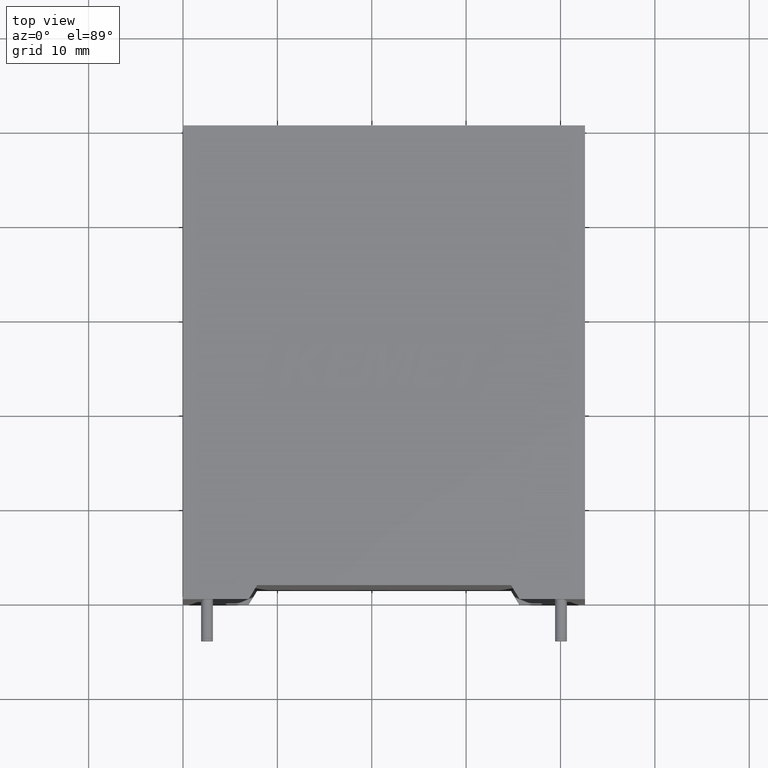
[diagram: clean part render]
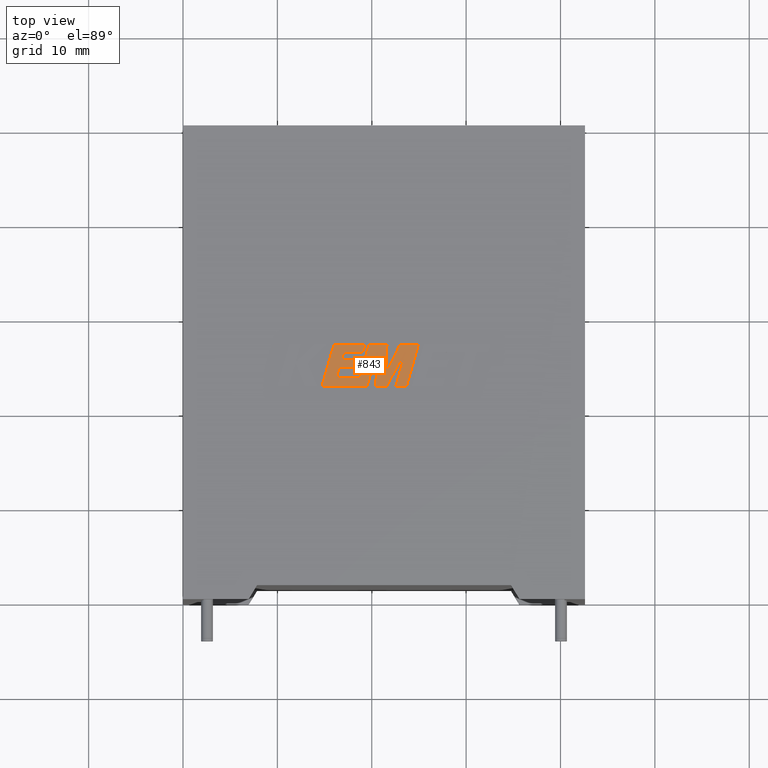
[diagram: same view with one face highlighted and labeled with its STEP entity id]
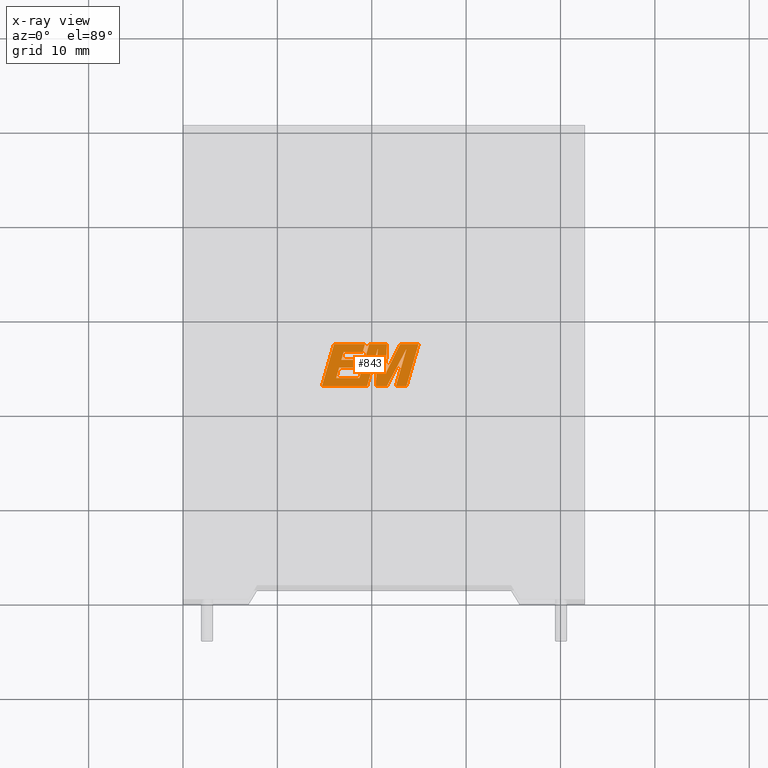
[diagram: x-ray of the same camera — body ghosted, the highlighted face saturated]
A machine part, top view. The second image highlights one B-rep face of the part: STEP entity #843.
The next image is the same camera in x-ray: the body ghosted, the highlighted face saturated — about 0% of this face is hidden behind the body in this view.
In plain terms, the highlighted planar face has unit normal (0, 0, -1).
Its self-contained STEP definition (entity closure, byte-faithful):
#6 = CARTESIAN_POINT ( 'NONE',  ( 20.42202856382045800, 22.57493999999987700, 35.40500000000000100 ) ) ;
#14 = VECTOR ( 'NONE', #2771, 1000.000000000000000 ) ;
#19 = VECTOR ( 'NONE', #27, 1000.000000000000000 ) ;
#27 = DIRECTION ( 'NONE',  ( -1.000000000000000000, 0.0000000000000000000, 0.0000000000000000000 ) ) ;
#28 = ORIENTED_EDGE ( 'NONE', *, *, #29, .T. ) ;
#29 = EDGE_CURVE ( 'NONE', #1706, #1494, #1680, .T. ) ;
#32 = VERTEX_POINT ( 'NONE', #1463 ) ;
#33 = DIRECTION ( 'NONE',  ( -0.2760118818968583200, -0.9611542233438683500, 0.0000000000000000000 ) ) ;
#59 = CARTESIAN_POINT ( 'NONE',  ( 19.28430409104226900, 27.01047267852246800, 35.40500000000000100 ) ) ;
#71 = VECTOR ( 'NONE', #2300, 1000.000000000000000 ) ;
#78 = ORIENTED_EDGE ( 'NONE', *, *, #1972, .T. ) ;
#139 = EDGE_CURVE ( 'NONE', #32, #2336, #2712, .T. ) ;
#158 = VECTOR ( 'NONE', #3367, 1000.000000000000000 ) ;
#187 = DIRECTION ( 'NONE',  ( 1.000000000000000000, 0.0000000000000000000, 0.0000000000000000000 ) ) ;
#218 = VECTOR ( 'NONE', #2285, 1000.000000000000000 ) ;
#225 = CARTESIAN_POINT ( 'NONE',  ( 19.04451057535562700, 26.16619180815600400, 35.40500000000000100 ) ) ;
#269 = VERTEX_POINT ( 'NONE', #3175 ) ;
#276 = DIRECTION ( 'NONE',  ( 1.000000000000000000, 0.0000000000000000000, 0.0000000000000000000 ) ) ;
#289 = LINE ( 'NONE', #225, #2652 ) ;
#310 = CARTESIAN_POINT ( 'NONE',  ( 23.69914816909359300, 26.54279440274525800, 35.40500000000000100 ) ) ;
#335 = LINE ( 'NONE', #310, #1042 ) ;
#337 = VERTEX_POINT ( 'NONE', #2934 ) ;
#341 = ORIENTED_EDGE ( 'NONE', *, *, #2467, .T. ) ;
#383 = CARTESIAN_POINT ( 'NONE',  ( 22.55971088192821100, 22.57493999999988100, 35.40500000000000100 ) ) ;
#387 = EDGE_CURVE ( 'NONE', #2018, #691, #2880, .T. ) ;
#425 = VERTEX_POINT ( 'NONE', #1907 ) ;
#432 = CARTESIAN_POINT ( 'NONE',  ( 21.44508031966771700, 23.84167114338324800, 35.40500000000000100 ) ) ;
#480 = VECTOR ( 'NONE', #1453, 1000.000000000000000 ) ;
#534 = CARTESIAN_POINT ( 'NONE',  ( 23.01670218402871300, 27.01047267852246800, 35.40500000000000100 ) ) ;
#538 = CARTESIAN_POINT ( 'NONE',  ( 18.68735580131990700, 25.34118343126179300, 35.40500000000000100 ) ) ;
#546 = ORIENTED_EDGE ( 'NONE', *, *, #1742, .T. ) ;
#549 = DIRECTION ( 'NONE',  ( -1.000000000000000000, 0.0000000000000000000, 0.0000000000000000000 ) ) ;
#554 = CARTESIAN_POINT ( 'NONE',  ( 18.68735580131990700, 25.34118343126179300, 35.40500000000000100 ) ) ;
#606 = ORIENTED_EDGE ( 'NONE', *, *, #139, .T. ) ;
#619 = CARTESIAN_POINT ( 'NONE',  ( 24.96209664954390200, 27.01047267852246800, 35.40500000000000100 ) ) ;
#654 = ORIENTED_EDGE ( 'NONE', *, *, #683, .T. ) ;
#677 = EDGE_CURVE ( 'NONE', #1003, #32, #1579, .T. ) ;
#683 = EDGE_CURVE ( 'NONE', #1151, #1518, #1967, .T. ) ;
#691 = VERTEX_POINT ( 'NONE', #3112 ) ;
#725 = LINE ( 'NONE', #1457, #14 ) ;
#726 = CARTESIAN_POINT ( 'NONE',  ( 19.72672177880340200, 27.01047267852246800, 35.40500000000000100 ) ) ;
#752 = LINE ( 'NONE', #538, #2738 ) ;
#767 = VECTOR ( 'NONE', #2401, 1000.000000000000100 ) ;
#771 = DIRECTION ( 'NONE',  ( 0.2732148821746573400, 0.9619530280415400400, 0.0000000000000000000 ) ) ;
#774 = EDGE_CURVE ( 'NONE', #425, #1151, #2795, .T. ) ;
#811 = VECTOR ( 'NONE', #1808, 1000.000000000000000 ) ;
#830 = DIRECTION ( 'NONE',  ( 0.2763139702539144100, 0.9610674221107065000, 0.0000000000000000000 ) ) ;
#843 = ADVANCED_FACE ( 'NONE', ( #1581 ), #2687, .F. ) ;
#848 = EDGE_CURVE ( 'NONE', #2336, #2093, #2371, .T. ) ;
#902 = VECTOR ( 'NONE', #3338, 1000.000000000000000 ) ;
#921 = VECTOR ( 'NONE', #187, 1000.000000000000000 ) ;
#940 = VECTOR ( 'NONE', #3159, 1000.000000000000100 ) ;
#949 = CARTESIAN_POINT ( 'NONE',  ( 14.73111344322171200, 22.57493999999987700, 35.40500000000000100 ) ) ;
#995 = DIRECTION ( 'NONE',  ( -0.2762517575166409900, -0.9610853065513834700, 0.0000000000000000000 ) ) ;
#1003 = VERTEX_POINT ( 'NONE', #3005 ) ;
#1033 = VECTOR ( 'NONE', #2266, 1000.000000000000000 ) ;
#1042 = VECTOR ( 'NONE', #33, 1000.000000000000100 ) ;
#1071 = LINE ( 'NONE', #3345, #158 ) ;
#1080 = DIRECTION ( 'NONE',  ( 0.2746459304916870600, 0.9615454294334487800, 0.0000000000000000000 ) ) ;
#1100 = EDGE_CURVE ( 'NONE', #337, #2535, #2119, .T. ) ;
#1106 = VECTOR ( 'NONE', #1080, 1000.000000000000000 ) ;
#1121 = EDGE_CURVE ( 'NONE', #2535, #1003, #725, .T. ) ;
#1146 = EDGE_CURVE ( 'NONE', #1941, #3132, #1626, .T. ) ;
#1151 = VERTEX_POINT ( 'NONE', #1713 ) ;
#1155 = ORIENTED_EDGE ( 'NONE', *, *, #3081, .T. ) ;
#1187 = CARTESIAN_POINT ( 'NONE',  ( 21.60450190883435100, 22.57493999999987700, 35.40500000000000100 ) ) ;
#1205 = ORIENTED_EDGE ( 'NONE', *, *, #1146, .T. ) ;
#1234 = LINE ( 'NONE', #1242, #1033 ) ;
#1242 = CARTESIAN_POINT ( 'NONE',  ( 19.50954545448809100, 22.57493999999987700, 35.40500000000000100 ) ) ;
#1246 = ORIENTED_EDGE ( 'NONE', *, *, #677, .T. ) ;
#1270 = EDGE_CURVE ( 'NONE', #3324, #1855, #3287, .T. ) ;
#1278 = DIRECTION ( 'NONE',  ( -0.2765379750249978300, -0.9610029908221272600, 0.0000000000000000000 ) ) ;
#1324 = LINE ( 'NONE', #3421, #3038 ) ;
#1327 = DIRECTION ( 'NONE',  ( 0.0000000000000000000, 0.0000000000000000000, -1.000000000000000000 ) ) ;
#1341 = CARTESIAN_POINT ( 'NONE',  ( 19.50954545448809100, 22.57493999999987700, 35.40500000000000100 ) ) ;
#1351 = LINE ( 'NONE', #3173, #1106 ) ;
#1359 = CARTESIAN_POINT ( 'NONE',  ( 16.54963302310860100, 24.52120559325017300, 35.40500000000000100 ) ) ;
#1362 = ORIENTED_EDGE ( 'NONE', *, *, #2333, .T. ) ;
#1444 = VECTOR ( 'NONE', #830, 1000.000000000000100 ) ;
#1449 = EDGE_CURVE ( 'NONE', #3148, #337, #1757, .T. ) ;
#1452 = ORIENTED_EDGE ( 'NONE', *, *, #3121, .T. ) ;
#1453 = DIRECTION ( 'NONE',  ( 0.4668459304955230900, 0.8843386665637600300, 0.0000000000000000000 ) ) ;
#1457 = CARTESIAN_POINT ( 'NONE',  ( 21.61565822307399600, 27.01047267852246800, 35.40500000000000100 ) ) ;
#1463 = CARTESIAN_POINT ( 'NONE',  ( 18.69434191160631900, 23.41880278269269100, 35.40500000000000100 ) ) ;
#1494 = VERTEX_POINT ( 'NONE', #3237 ) ;
#1518 = VERTEX_POINT ( 'NONE', #2129 ) ;
#1560 = ORIENTED_EDGE ( 'NONE', *, *, #387, .T. ) ;
#1572 = CARTESIAN_POINT ( 'NONE',  ( 19.28430409104226900, 27.01047267852246800, 35.40500000000000100 ) ) ;
#1579 = LINE ( 'NONE', #726, #2872 ) ;
#1581 = FACE_OUTER_BOUND ( 'NONE', #3020, .T. ) ;
#1592 = CARTESIAN_POINT ( 'NONE',  ( -0.1503410928526370500, 0.3518460167495629500, 35.40500000000000100 ) ) ;
#1594 = CARTESIAN_POINT ( 'NONE',  ( 23.01670218402871300, 27.01047267852246800, 35.40500000000000100 ) ) ;
#1626 = LINE ( 'NONE', #949, #902 ) ;
#1631 = DIRECTION ( 'NONE',  ( -1.000000000000000000, 0.0000000000000000000, -0.0000000000000000000 ) ) ;
#1637 = VERTEX_POINT ( 'NONE', #2469 ) ;
#1680 = LINE ( 'NONE', #2038, #480 ) ;
#1696 = LINE ( 'NONE', #1781, #921 ) ;
#1706 = VERTEX_POINT ( 'NONE', #1187 ) ;
#1713 = CARTESIAN_POINT ( 'NONE',  ( 17.02363656092146000, 26.16619180815600400, 35.40500000000000100 ) ) ;
#1742 = EDGE_CURVE ( 'NONE', #1518, #2018, #289, .T. ) ;
#1744 = CARTESIAN_POINT ( 'NONE',  ( 20.42202856382045800, 22.57493999999987700, 35.40500000000000100 ) ) ;
#1757 = LINE ( 'NONE', #534, #940 ) ;
#1781 = CARTESIAN_POINT ( 'NONE',  ( 16.54963302310860100, 24.52120559325017300, 35.40500000000000100 ) ) ;
#1796 = AXIS2_PLACEMENT_3D ( 'NONE', #1592, #1327, #1631 ) ;
#1808 = DIRECTION ( 'NONE',  ( 1.000000000000000000, 0.0000000000000000000, 0.0000000000000000000 ) ) ;
#1828 = EDGE_CURVE ( 'NONE', #691, #1941, #1324, .T. ) ;
#1855 = VERTEX_POINT ( 'NONE', #3429 ) ;
#1893 = EDGE_CURVE ( 'NONE', #1992, #425, #752, .T. ) ;
#1907 = CARTESIAN_POINT ( 'NONE',  ( 16.78357331124689000, 25.34118343126179300, 35.40500000000000100 ) ) ;
#1941 = VERTEX_POINT ( 'NONE', #2144 ) ;
#1967 = LINE ( 'NONE', #3400, #811 ) ;
#1972 = EDGE_CURVE ( 'NONE', #1494, #3324, #335, .T. ) ;
#1985 = LINE ( 'NONE', #2433, #1444 ) ;
#1992 = VERTEX_POINT ( 'NONE', #554 ) ;
#2018 = VERTEX_POINT ( 'NONE', #1572 ) ;
#2038 = CARTESIAN_POINT ( 'NONE',  ( 21.60450190883435100, 22.57493999999987700, 35.40500000000000100 ) ) ;
#2061 = DIRECTION ( 'NONE',  ( 0.2793947940878290800, 0.9601763114327595000, 0.0000000000000000000 ) ) ;
#2062 = ORIENTED_EDGE ( 'NONE', *, *, #1449, .T. ) ;
#2093 = VERTEX_POINT ( 'NONE', #1359 ) ;
#2102 = ORIENTED_EDGE ( 'NONE', *, *, #2375, .T. ) ;
#2119 = LINE ( 'NONE', #432, #2407 ) ;
#2129 = CARTESIAN_POINT ( 'NONE',  ( 19.04451057535562700, 26.16619180815600400, 35.40500000000000100 ) ) ;
#2144 = CARTESIAN_POINT ( 'NONE',  ( 14.73111344322171200, 22.57493999999987700, 35.40500000000000100 ) ) ;
#2151 = DIRECTION ( 'NONE',  ( -1.000000000000000000, 0.0000000000000000000, 0.0000000000000000000 ) ) ;
#2237 = DIRECTION ( 'NONE',  ( 0.05375259206908569700, 0.9985542843760946100, 0.0000000000000000000 ) ) ;
#2264 = ORIENTED_EDGE ( 'NONE', *, *, #1100, .T. ) ;
#2266 = DIRECTION ( 'NONE',  ( 0.2759782365590843200, 0.9611638845408925200, 0.0000000000000000000 ) ) ;
#2285 = DIRECTION ( 'NONE',  ( 1.000000000000000000, 0.0000000000000000000, 0.0000000000000000000 ) ) ;
#2300 = DIRECTION ( 'NONE',  ( -1.000000000000000000, 0.0000000000000000000, 0.0000000000000000000 ) ) ;
#2332 = VECTOR ( 'NONE', #2151, 1000.000000000000000 ) ;
#2333 = EDGE_CURVE ( 'NONE', #3132, #1637, #1234, .T. ) ;
#2336 = VERTEX_POINT ( 'NONE', #2513 ) ;
#2371 = LINE ( 'NONE', #2940, #767 ) ;
#2373 = CARTESIAN_POINT ( 'NONE',  ( 18.69434191160631900, 23.41880278269269100, 35.40500000000000100 ) ) ;
#2375 = EDGE_CURVE ( 'NONE', #1637, #3440, #1071, .T. ) ;
#2401 = DIRECTION ( 'NONE',  ( 0.2740217765954296400, 0.9617234872620531400, 0.0000000000000000000 ) ) ;
#2407 = VECTOR ( 'NONE', #2237, 1000.000000000000100 ) ;
#2426 = ORIENTED_EDGE ( 'NONE', *, *, #1893, .T. ) ;
#2433 = CARTESIAN_POINT ( 'NONE',  ( 23.68684829922329600, 22.57493999999988100, 35.40500000000000100 ) ) ;
#2467 = EDGE_CURVE ( 'NONE', #2093, #269, #1696, .T. ) ;
#2468 = ORIENTED_EDGE ( 'NONE', *, *, #1121, .T. ) ;
#2469 = CARTESIAN_POINT ( 'NONE',  ( 20.64337227469650000, 26.52377815657259000, 35.40500000000000100 ) ) ;
#2483 = ORIENTED_EDGE ( 'NONE', *, *, #2828, .T. ) ;
#2513 = CARTESIAN_POINT ( 'NONE',  ( 16.23552779361820300, 23.41880278269269100, 35.40500000000000100 ) ) ;
#2535 = VERTEX_POINT ( 'NONE', #2669 ) ;
#2574 = ORIENTED_EDGE ( 'NONE', *, *, #2606, .T. ) ;
#2599 = ORIENTED_EDGE ( 'NONE', *, *, #1828, .T. ) ;
#2606 = EDGE_CURVE ( 'NONE', #1855, #3210, #1985, .T. ) ;
#2621 = VECTOR ( 'NONE', #2061, 1000.000000000000100 ) ;
#2652 = VECTOR ( 'NONE', #771, 1000.000000000000200 ) ;
#2669 = CARTESIAN_POINT ( 'NONE',  ( 21.61565822307399600, 27.01047267852246800, 35.40500000000000100 ) ) ;
#2674 = ORIENTED_EDGE ( 'NONE', *, *, #1270, .T. ) ;
#2678 = VECTOR ( 'NONE', #276, 1000.000000000000000 ) ;
#2683 = LINE ( 'NONE', #3060, #71 ) ;
#2687 = PLANE ( 'NONE',  #1796 ) ;
#2712 = LINE ( 'NONE', #2373, #19 ) ;
#2738 = VECTOR ( 'NONE', #549, 1000.000000000000000 ) ;
#2771 = DIRECTION ( 'NONE',  ( -1.000000000000000000, 0.0000000000000000000, 0.0000000000000000000 ) ) ;
#2795 = LINE ( 'NONE', #3139, #2621 ) ;
#2828 = EDGE_CURVE ( 'NONE', #3210, #3148, #2683, .T. ) ;
#2843 = ORIENTED_EDGE ( 'NONE', *, *, #848, .T. ) ;
#2872 = VECTOR ( 'NONE', #995, 1000.000000000000200 ) ;
#2880 = LINE ( 'NONE', #59, #2332 ) ;
#2934 = CARTESIAN_POINT ( 'NONE',  ( 21.44508031966771700, 23.84167114338324800, 35.40500000000000100 ) ) ;
#2940 = CARTESIAN_POINT ( 'NONE',  ( 16.23552779361820300, 23.41880278269269100, 35.40500000000000100 ) ) ;
#3005 = CARTESIAN_POINT ( 'NONE',  ( 19.72672177880340200, 27.01047267852246800, 35.40500000000000100 ) ) ;
#3020 = EDGE_LOOP ( 'NONE', ( #2483, #2062, #2264, #2468, #1246, #606, #2843, #341, #1155, #2426, #3349, #654, #546, #1560, #2599, #1205, #1362, #2102, #1452, #28, #78, #2674, #2574 ) ) ;
#3038 = VECTOR ( 'NONE', #1278, 1000.000000000000100 ) ;
#3060 = CARTESIAN_POINT ( 'NONE',  ( 24.96209664954390200, 27.01047267852246800, 35.40500000000000100 ) ) ;
#3081 = EDGE_CURVE ( 'NONE', #269, #1992, #1351, .T. ) ;
#3098 = CARTESIAN_POINT ( 'NONE',  ( 22.55971088192821100, 22.57493999999988100, 35.40500000000000100 ) ) ;
#3112 = CARTESIAN_POINT ( 'NONE',  ( 16.00748119315608500, 27.01047267852246800, 35.40500000000000100 ) ) ;
#3121 = EDGE_CURVE ( 'NONE', #3440, #1706, #3134, .T. ) ;
#3132 = VERTEX_POINT ( 'NONE', #1341 ) ;
#3134 = LINE ( 'NONE', #6, #2678 ) ;
#3139 = CARTESIAN_POINT ( 'NONE',  ( 16.78357331124689000, 25.34118343126179300, 35.40500000000000100 ) ) ;
#3148 = VERTEX_POINT ( 'NONE', #1594 ) ;
#3159 = DIRECTION ( 'NONE',  ( -0.4443210308329524900, -0.8958676361826798400, 0.0000000000000000000 ) ) ;
#3173 = CARTESIAN_POINT ( 'NONE',  ( 18.45314577919338500, 24.52120559325017300, 35.40500000000000100 ) ) ;
#3175 = CARTESIAN_POINT ( 'NONE',  ( 18.45314577919338500, 24.52120559325017300, 35.40500000000000100 ) ) ;
#3210 = VERTEX_POINT ( 'NONE', #619 ) ;
#3237 = CARTESIAN_POINT ( 'NONE',  ( 23.69914816909359300, 26.54279440274525800, 35.40500000000000100 ) ) ;
#3287 = LINE ( 'NONE', #3098, #218 ) ;
#3324 = VERTEX_POINT ( 'NONE', #383 ) ;
#3338 = DIRECTION ( 'NONE',  ( 1.000000000000000000, 0.0000000000000000000, 0.0000000000000000000 ) ) ;
#3345 = CARTESIAN_POINT ( 'NONE',  ( 20.64337227469650000, 26.52377815657259000, 35.40500000000000100 ) ) ;
#3349 = ORIENTED_EDGE ( 'NONE', *, *, #774, .T. ) ;
#3367 = DIRECTION ( 'NONE',  ( -0.05596501978068446600, -0.9984327301130244700, 0.0000000000000000000 ) ) ;
#3400 = CARTESIAN_POINT ( 'NONE',  ( 17.02363656092146000, 26.16619180815600400, 35.40500000000000100 ) ) ;
#3421 = CARTESIAN_POINT ( 'NONE',  ( 16.00748119315608500, 27.01047267852246800, 35.40500000000000100 ) ) ;
#3429 = CARTESIAN_POINT ( 'NONE',  ( 23.68684829922329600, 22.57493999999988100, 35.40500000000000100 ) ) ;
#3440 = VERTEX_POINT ( 'NONE', #1744 ) ;